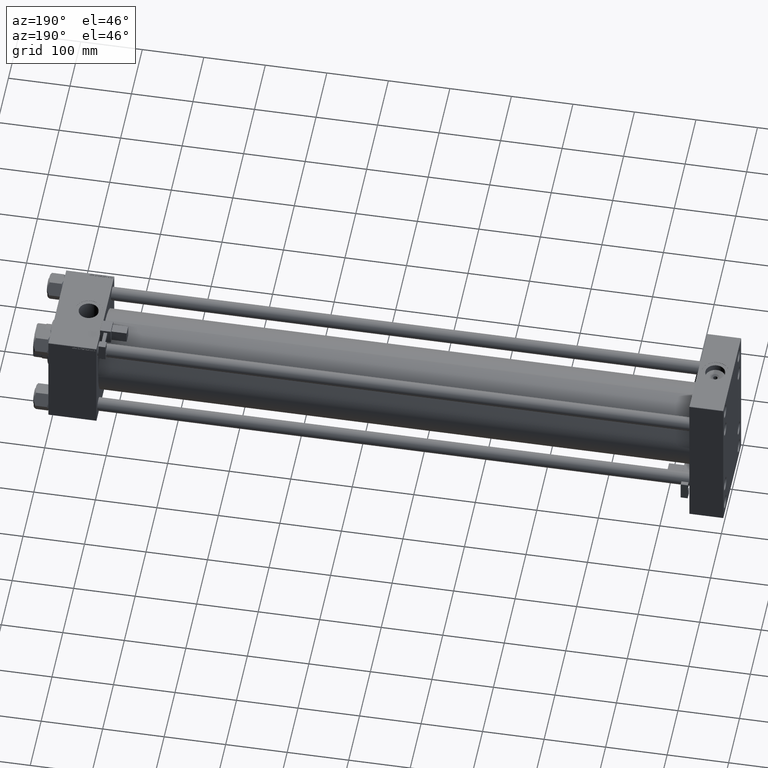
[diagram: clean part render]
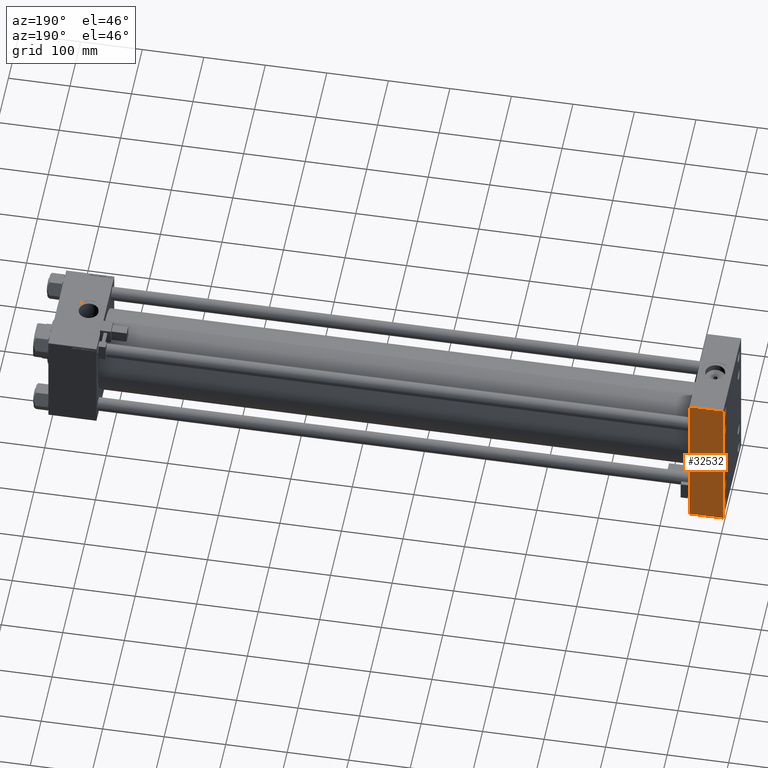
[diagram: same view with one face highlighted and labeled with its STEP entity id]
A machine part, auxiliary view. The second image highlights one B-rep face of the part: STEP entity #32532.
In plain terms, the highlighted planar face has unit normal (0, 1, 0).
Its self-contained STEP definition (entity closure, byte-faithful):
#1815 = LINE ( 'NONE', #31122, #29051 ) ;
#3379 = DIRECTION ( 'NONE',  ( 0.000000000000000000, -0.000000000000000000, 1.000000000000000000 ) ) ;
#4184 = ORIENTED_EDGE ( 'NONE', *, *, #6935, .T. ) ;
#5158 = ORIENTED_EDGE ( 'NONE', *, *, #35021, .T. ) ;
#5539 = ORIENTED_EDGE ( 'NONE', *, *, #48365, .F. ) ;
#6935 = EDGE_CURVE ( 'NONE', #23398, #41744, #1815, .T. ) ;
#7399 = CARTESIAN_POINT ( 'NONE',  ( 55.00000000000000000, 82.50000000000001421, 123.0000000000000284 ) ) ;
#7697 = CARTESIAN_POINT ( 'NONE',  ( 0.000000000000000000, 82.50000000000001421, 123.5000000000000284 ) ) ;
#8504 = VECTOR ( 'NONE', #23959, 1000.000000000000000 ) ;
#11122 = CARTESIAN_POINT ( 'NONE',  ( 55.00000000000000000, 82.50000000000001421, 123.5000000000000284 ) ) ;
#11223 = LINE ( 'NONE', #15720, #46661 ) ;
#15720 = CARTESIAN_POINT ( 'NONE',  ( 55.00000000000000000, 82.50000000000001421, 123.5000000000000284 ) ) ;
#21364 = VECTOR ( 'NONE', #49510, 1000.000000000000000 ) ;
#22987 = VERTEX_POINT ( 'NONE', #27487 ) ;
#23398 = VERTEX_POINT ( 'NONE', #35958 ) ;
#23959 = DIRECTION ( 'NONE',  ( 0.000000000000000000, 0.000000000000000000, -1.000000000000000000 ) ) ;
#26223 = AXIS2_PLACEMENT_3D ( 'NONE', #11122, #27392, #3379 ) ;
#27392 = DIRECTION ( 'NONE',  ( -0.000000000000000000, 1.000000000000000000, 0.000000000000000000 ) ) ;
#27487 = CARTESIAN_POINT ( 'NONE',  ( 0.000000000000000000, 82.50000000000001421, 123.0000000000000284 ) ) ;
#27714 = EDGE_LOOP ( 'NONE', ( #5158, #4184, #5539, #51674 ) ) ;
#29051 = VECTOR ( 'NONE', #42867, 1000.000000000000000 ) ;
#31122 = CARTESIAN_POINT ( 'NONE',  ( 55.00000000000000000, 82.50000000000001421, -123.0000000000000000 ) ) ;
#32018 = DIRECTION ( 'NONE',  ( 0.000000000000000000, 0.000000000000000000, -1.000000000000000000 ) ) ;
#32532 = ADVANCED_FACE ( 'NONE', ( #35917 ), #48699, .T. ) ;
#35021 = EDGE_CURVE ( 'NONE', #36233, #23398, #11223, .T. ) ;
#35917 = FACE_OUTER_BOUND ( 'NONE', #27714, .T. ) ;
#35958 = CARTESIAN_POINT ( 'NONE',  ( 55.00000000000000000, 82.50000000000001421, -123.0000000000000000 ) ) ;
#36233 = VERTEX_POINT ( 'NONE', #41587 ) ;
#41587 = CARTESIAN_POINT ( 'NONE',  ( 55.00000000000000000, 82.50000000000001421, 123.0000000000000284 ) ) ;
#41744 = VERTEX_POINT ( 'NONE', #50734 ) ;
#42867 = DIRECTION ( 'NONE',  ( -1.000000000000000000, 0.000000000000000000, 0.000000000000000000 ) ) ;
#43940 = LINE ( 'NONE', #7399, #21364 ) ;
#46661 = VECTOR ( 'NONE', #32018, 1000.000000000000000 ) ;
#48365 = EDGE_CURVE ( 'NONE', #22987, #41744, #50008, .T. ) ;
#48699 = PLANE ( 'NONE',  #26223 ) ;
#49510 = DIRECTION ( 'NONE',  ( 1.000000000000000000, 0.000000000000000000, 0.000000000000000000 ) ) ;
#50008 = LINE ( 'NONE', #7697, #8504 ) ;
#50297 = EDGE_CURVE ( 'NONE', #22987, #36233, #43940, .T. ) ;
#50734 = CARTESIAN_POINT ( 'NONE',  ( 0.000000000000000000, 82.50000000000001421, -123.0000000000000000 ) ) ;
#51674 = ORIENTED_EDGE ( 'NONE', *, *, #50297, .T. ) ;